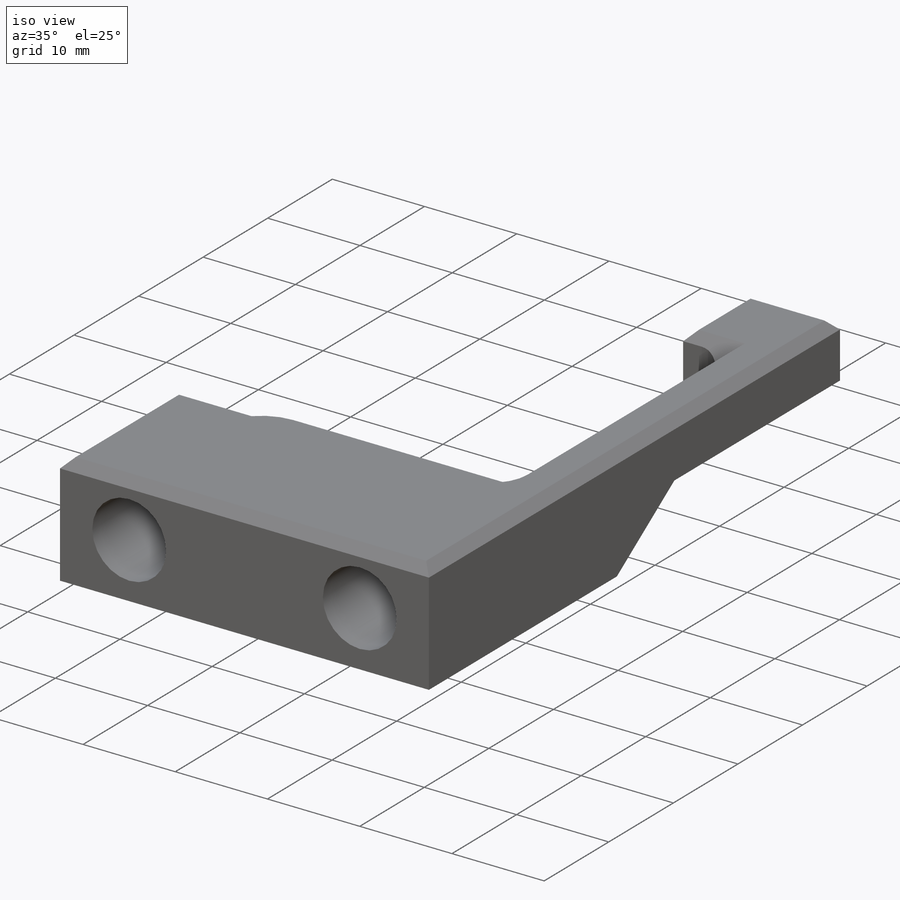
[diagram: iso view]
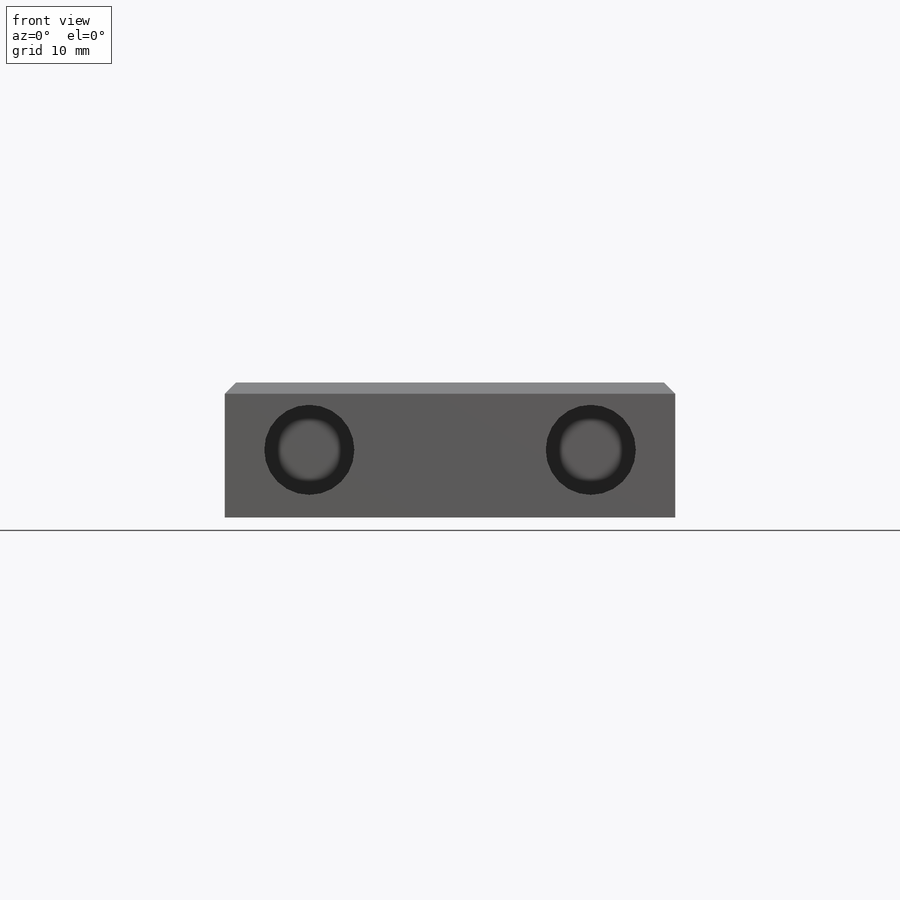
[diagram: front view]
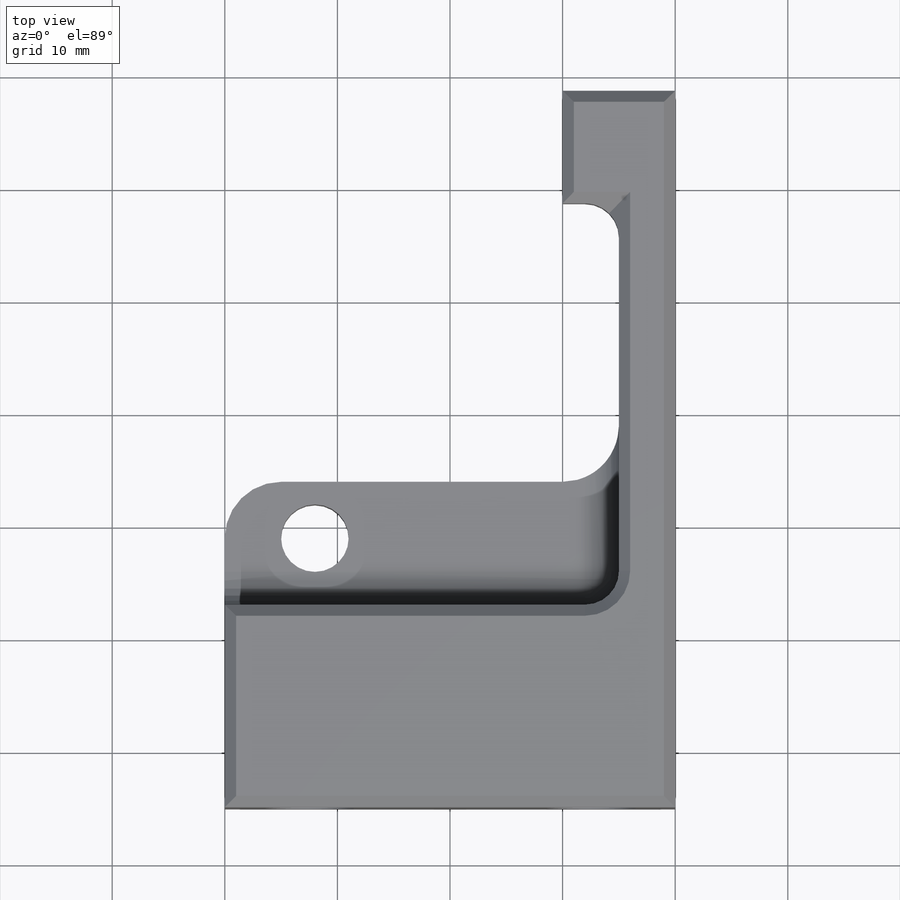
[diagram: top view]
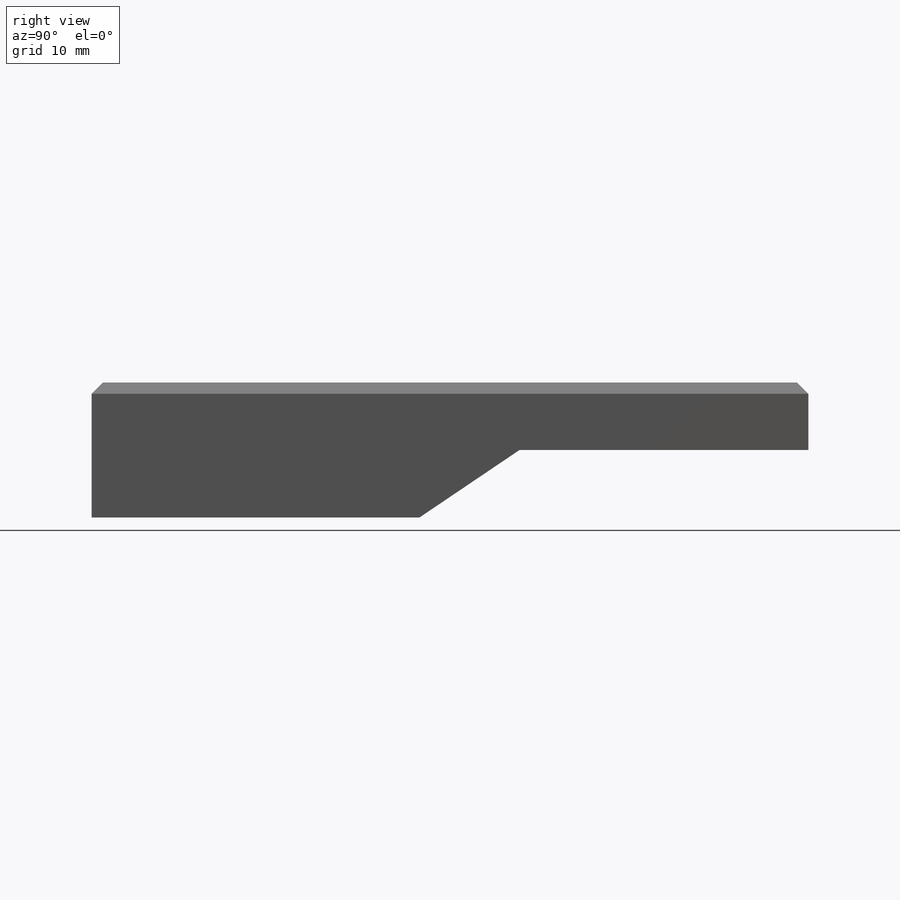
[diagram: right view]
SOLIDWORKS PART (.sldprt)
format: sldprt  version: not decoded by parser v0  size: 324,096 bytes
history: native  units: mm
features: sketch x8, cut_extrude x5, fillet x4, extrude x3, chamfer x2, material x1 (+13 scaffold rows collapsed)
feature tree (36):
  scaffold x13  (default folders/planes/origin — collapsed)
  material  "Material <not specified>"
  sketch  "Sketch1"  dims[D1=40.0mm D2=30.0mm]
  extrude  "Boss-Extrude1"  Depth=12mm
  sketch  "Sketch2"  dims[D1=25.0mm D2=12.5mm D3=12.0mm]
  cut_extrude  "Cut-Extrude1"  Depth=12mm
  sketch  "Sketch3"  dims[D1=6.0mm]
  cut_extrude  "Cut-Extrude2"  Depth=100mm
  fillet  "Fillet1"  Radius=5mm
  sketch  "Sketch4"  dims[D1=7.5mm D2=25.0mm]
  cut_extrude  "Cut-Extrude3"  Depth=12.5mm
  sketch  "Sketch6"
  cut_extrude  "Cut-Extrude4"  Depth=100mm
  sketch  "Sketch7"
  extrude  "Boss-Extrude2"  Depth=20mm
  sketch  "Sketch8"  dims[D1=5.0mm D2=5.0mm D3=10.0mm]
  extrude  "Boss-Extrude3"  [1 undecoded]
  sketch  "Sketch9"  dims[D1=6.0mm D2=8.0mm D3=9.0mm]
  cut_extrude  "Cut-Extrude5"  Depth=20mm
  chamfer  "Chamfer2"  Distance=6mm Angle=56deg
  fillet  "Fillet2"  Radius=5mm
  fillet  "Fillet3"  Radius=3mm
  chamfer  "Chamfer3"  Distance=1mm Angle=45deg
  fillet  "Fillet4"  Radius=3mm
decode coverage: 19 of 22 modeling features carry decoded parameters
note: 1 parameter value undecoded
note: suppression state not decoded; provenance and decode notes live in map.json
